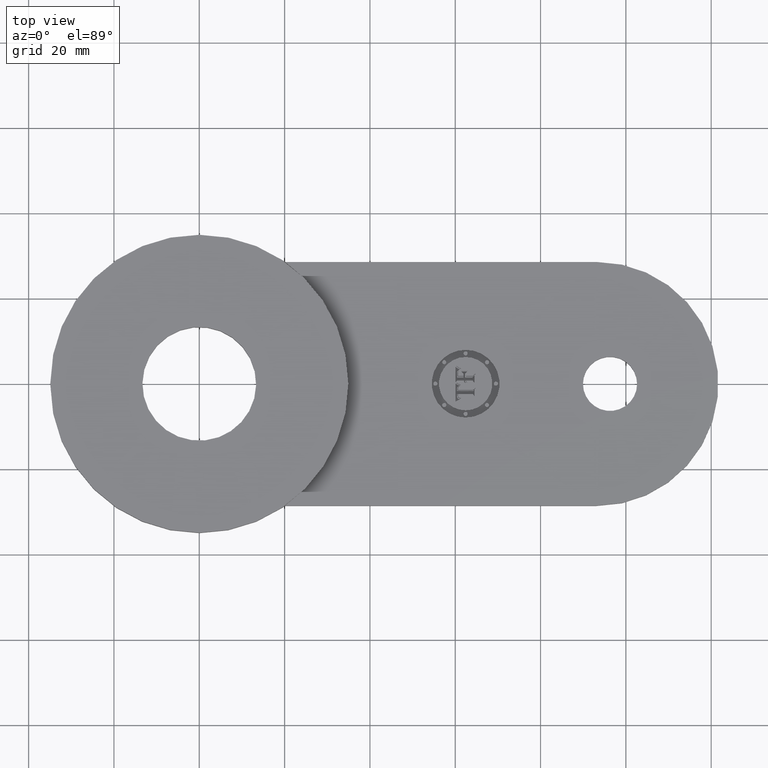
[diagram: clean part render]
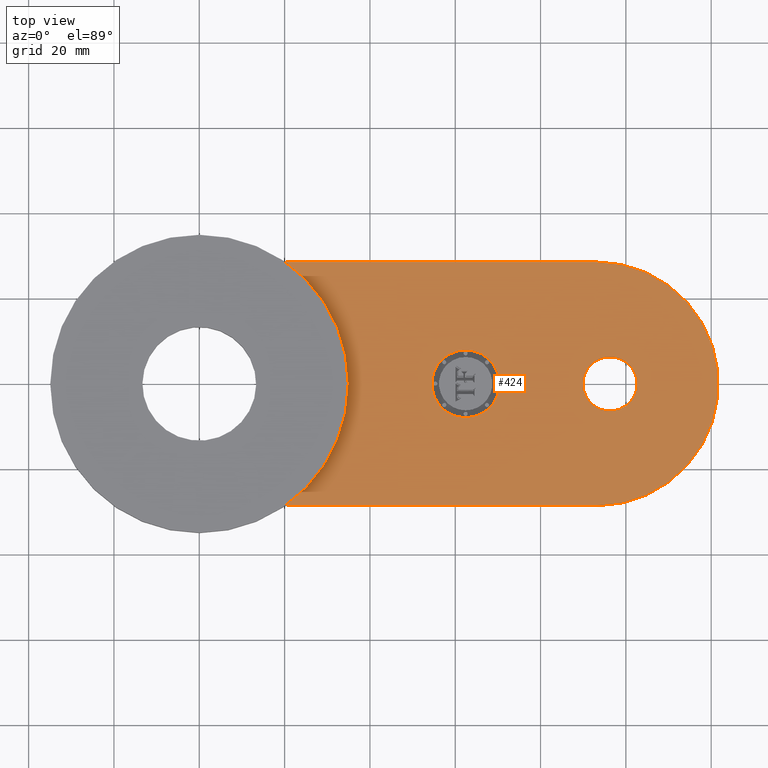
[diagram: same view with one face highlighted and labeled with its STEP entity id]
A machine part, top view. The second image highlights one B-rep face of the part: STEP entity #424.
In plain terms, the highlighted planar face has unit normal (0, 0, 1).
Its self-contained STEP definition (entity closure, byte-faithful):
#155=AXIS2_PLACEMENT_3D('Circle Axis2P3D',#153,#154,$) ;
#204=AXIS2_PLACEMENT_3D('Circle Axis2P3D',#202,#203,$) ;
#270=AXIS2_PLACEMENT_3D('Circle Axis2P3D',#268,#269,$) ;
#287=AXIS2_PLACEMENT_3D('Circle Axis2P3D',#285,#286,$) ;
#322=AXIS2_PLACEMENT_3D('Circle Axis2P3D',#320,#321,$) ;
#393=AXIS2_PLACEMENT_3D('Plane Axis2P3D',#390,#391,#392) ;
#408=AXIS2_PLACEMENT_3D('Circle Axis2P3D',#406,#407,$) ;
#417=AXIS2_PLACEMENT_3D('Circle Axis2P3D',#415,#416,$) ;
#150=CARTESIAN_POINT('Vertex',(1.37500000001,0.,0.0937500000004)) ;
#153=CARTESIAN_POINT('Axis2P3D Location',(0.,0.,0.0937500000004)) ;
#157=CARTESIAN_POINT('Vertex',(0.790569415045,1.125,0.0937500000004)) ;
#199=CARTESIAN_POINT('Vertex',(0.790569415045,-1.125,0.0937500000004)) ;
#202=CARTESIAN_POINT('Axis2P3D Location',(0.,0.,0.0937500000004)) ;
#234=CARTESIAN_POINT('Vertex',(3.66556941506,-1.125,0.0937500000004)) ;
#237=CARTESIAN_POINT('Line Origine',(2.22806941505,-1.125,0.0937500000004)) ;
#265=CARTESIAN_POINT('Vertex',(3.66556941506,1.125,0.0937500000004)) ;
#268=CARTESIAN_POINT('Axis2P3D Location',(3.66556941506,0.,0.0937500000004)) ;
#285=CARTESIAN_POINT('Axis2P3D Location',(3.79056941506,0.,0.0937500000004)) ;
#289=CARTESIAN_POINT('Vertex',(4.04056941506,0.,0.0937500000004)) ;
#291=CARTESIAN_POINT('Vertex',(3.54056941506,3.06161699788E-017,0.0937500000004)) ;
#320=CARTESIAN_POINT('Axis2P3D Location',(3.79056941506,0.,0.0937500000004)) ;
#364=CARTESIAN_POINT('Line Origine',(2.22806941505,1.125,0.0937500000004)) ;
#390=CARTESIAN_POINT('Axis2P3D Location',(0.,0.,0.0937500000004)) ;
#406=CARTESIAN_POINT('Axis2P3D Location',(2.45778470753,-2.50344700542E-015,0.0937500000004)) ;
#410=CARTESIAN_POINT('Vertex',(2.45778470753,0.312499996876,0.0937500000004)) ;
#412=CARTESIAN_POINT('Vertex',(2.45778470753,-0.312499996876,0.0937500000004)) ;
#415=CARTESIAN_POINT('Axis2P3D Location',(2.45778470753,-2.50344700542E-015,0.0937500000004)) ;
#154=DIRECTION('Axis2P3D Direction',(0.,0.,0.0393700787402)) ;
#203=DIRECTION('Axis2P3D Direction',(0.,0.,0.0393700787402)) ;
#238=DIRECTION('Vector Direction',(0.0393700787402,0.,0.)) ;
#269=DIRECTION('Axis2P3D Direction',(0.,0.,0.0393700787402)) ;
#286=DIRECTION('Axis2P3D Direction',(0.,0.,0.0393700787402)) ;
#321=DIRECTION('Axis2P3D Direction',(0.,0.,0.0393700787402)) ;
#365=DIRECTION('Vector Direction',(-0.0393700787402,0.,0.)) ;
#391=DIRECTION('Axis2P3D Direction',(0.,0.,0.0393700787402)) ;
#392=DIRECTION('Axis2P3D XDirection',(0.0393700787402,0.,0.)) ;
#407=DIRECTION('Axis2P3D Direction',(0.,0.,0.0393700787402)) ;
#416=DIRECTION('Axis2P3D Direction',(0.,0.,0.0393700787402)) ;
#239=VECTOR('Line Direction',#238,0.0393700787402) ;
#366=VECTOR('Line Direction',#365,0.0393700787402) ;
#396=ORIENTED_EDGE('',*,*,#241,.T.) ;
#397=ORIENTED_EDGE('',*,*,#272,.T.) ;
#398=ORIENTED_EDGE('',*,*,#368,.T.) ;
#399=ORIENTED_EDGE('',*,*,#159,.F.) ;
#400=ORIENTED_EDGE('',*,*,#206,.F.) ;
#403=ORIENTED_EDGE('',*,*,#324,.F.) ;
#404=ORIENTED_EDGE('',*,*,#293,.F.) ;
#421=ORIENTED_EDGE('',*,*,#414,.F.) ;
#422=ORIENTED_EDGE('',*,*,#419,.F.) ;
#405=FACE_BOUND('',#402,.T.) ;
#423=FACE_BOUND('',#420,.T.) ;
#424=ADVANCED_FACE('PartBody',(#401,#405,#423),#394,.T.) ;
#156=CIRCLE('generated circle',#155,1.37500000001) ;
#205=CIRCLE('generated circle',#204,1.37500000001) ;
#271=CIRCLE('generated circle',#270,1.125) ;
#288=CIRCLE('generated circle',#287,0.250000000001) ;
#323=CIRCLE('generated circle',#322,0.250000000001) ;
#409=CIRCLE('generated circle',#408,0.312499996876) ;
#418=CIRCLE('generated circle',#417,0.312499996876) ;
#159=EDGE_CURVE('',#151,#158,#156,.T.) ;
#206=EDGE_CURVE('',#200,#151,#205,.T.) ;
#241=EDGE_CURVE('',#200,#235,#240,.T.) ;
#272=EDGE_CURVE('',#235,#266,#271,.T.) ;
#293=EDGE_CURVE('',#290,#292,#288,.T.) ;
#324=EDGE_CURVE('',#292,#290,#323,.T.) ;
#368=EDGE_CURVE('',#266,#158,#367,.T.) ;
#414=EDGE_CURVE('',#411,#413,#409,.T.) ;
#419=EDGE_CURVE('',#413,#411,#418,.T.) ;
#395=EDGE_LOOP('',(#396,#397,#398,#399,#400)) ;
#402=EDGE_LOOP('',(#403,#404)) ;
#420=EDGE_LOOP('',(#421,#422)) ;
#401=FACE_OUTER_BOUND('',#395,.T.) ;
#240=LINE('Line',#237,#239) ;
#367=LINE('Line',#364,#366) ;
#394=PLANE('',#393) ;
#151=VERTEX_POINT('',#150) ;
#158=VERTEX_POINT('',#157) ;
#200=VERTEX_POINT('',#199) ;
#235=VERTEX_POINT('',#234) ;
#266=VERTEX_POINT('',#265) ;
#290=VERTEX_POINT('',#289) ;
#292=VERTEX_POINT('',#291) ;
#411=VERTEX_POINT('',#410) ;
#413=VERTEX_POINT('',#412) ;